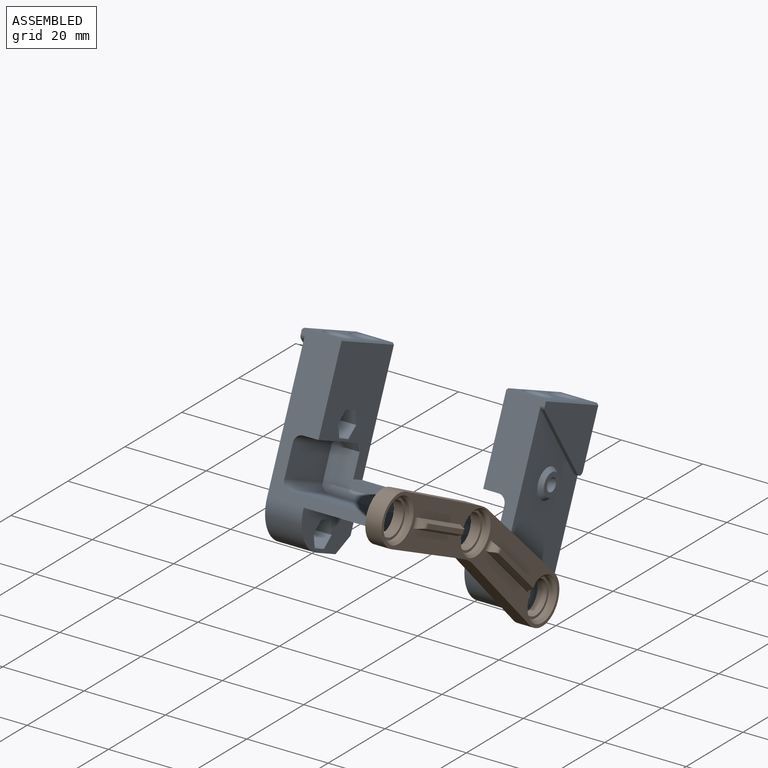
[diagram: assembled view]
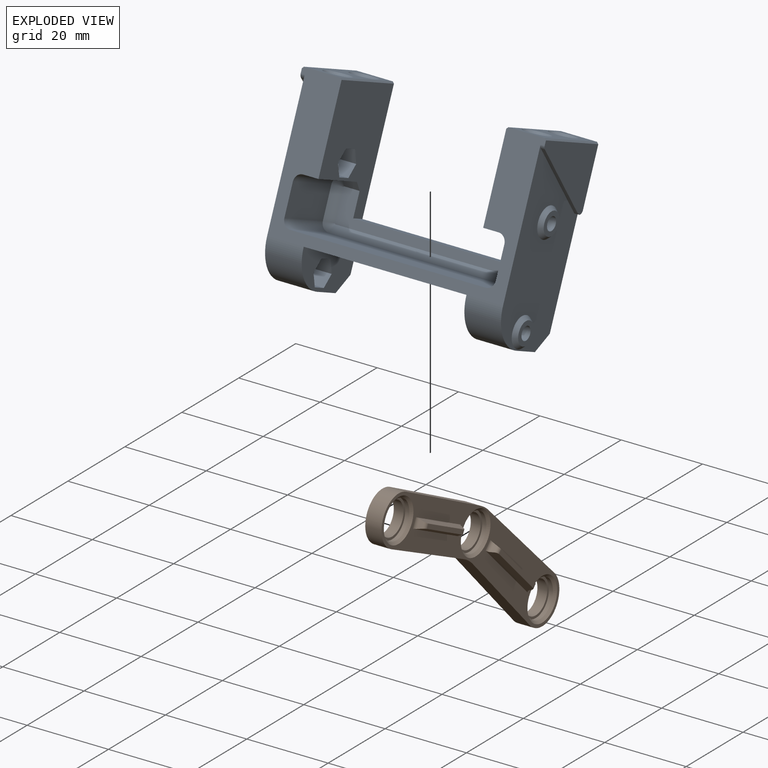
[diagram: exploded view]
GUIDED TOUR — FREECAD ASSEMBLY "gripper-parts"

This assembly has 2 components, labeled P0..P1 below (a component is one placed body or linked part; the same part can appear more than once), held together by 0 modeled joints plus 1 derived contact edge. A joint is a constraint between two components; its type names the relative motion it leaves free:
  CONTACT — a derived adjacency edge — the two components touch in the source model (clearance under 2% of the assembly's diagonal); it is measured from the geometry, not a modeled constraint.
Axis/direction vectors are unit vectors and 'through' points are millimeter coordinates, both in the assembly's world frame.

MATES
  1. CONTACT "contact_0_1": P0 <-> P1, contact direction (1.000, 0.000, 0.000) through (15.94, -6.40, -53.15) mm (derived from contact, not a modeled constraint)

ASSEMBLY ORDER
  1. P1 — the base component [order verified]
  2. P0 [order verified]
Order-tag legend:
  [order verified] — this step's position reverses a verified removal order: the component was checked to insert without passing through the ones already placed.

Of the 2 components, 2 carry a construction recipe — the FreeCAD feature program (sketches with constraints, then the solid features that consume them) that regenerates the part from scratch, quoted from this document or from the linked companion document it references; the rest are supplied as boundary geometry only. The tour below walks the components in assembly order: each is shown spotlighted twice — in the assembled view, then in the exploded view, where a leader line traces a displaced component back to its assembled socket (components that stay in place when exploded have no leader line; saturated green if recipe-attached, orange if geometry-only; every other component desaturated gray) — followed by its recipe or geometry summary and the mates that hold it.
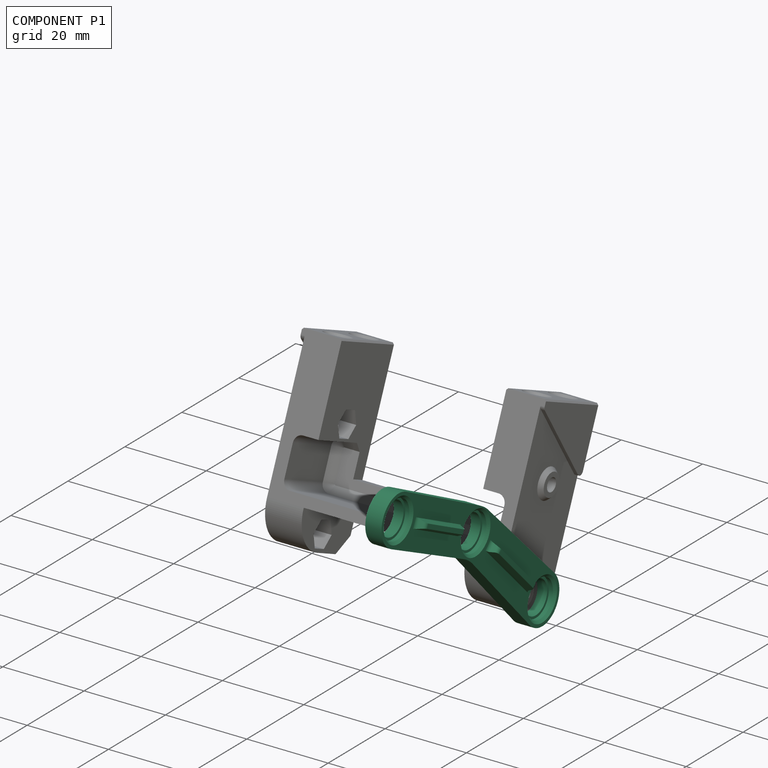
[diagram: component P1 — assembled]
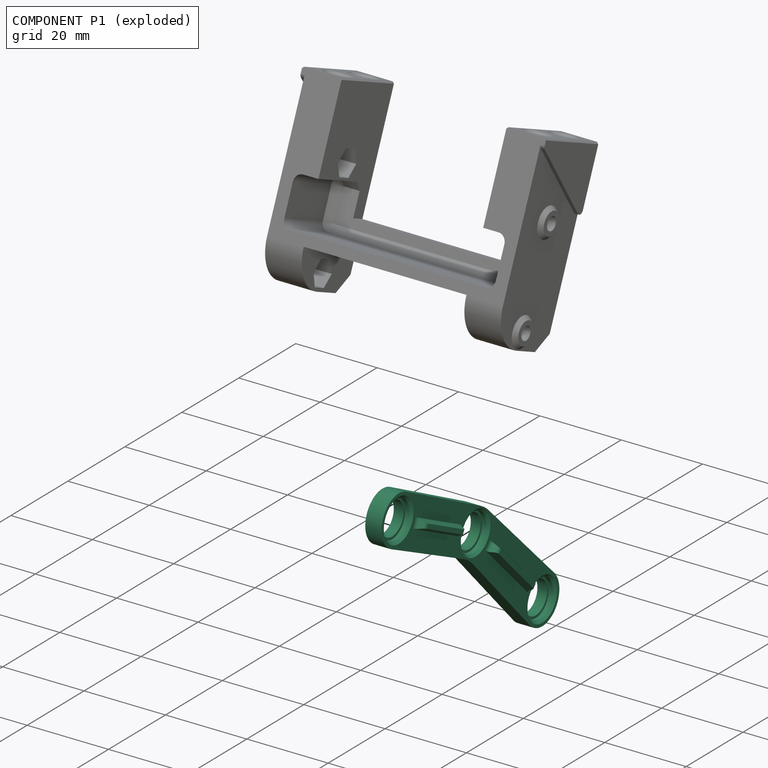
[diagram: component P1 — exploded]
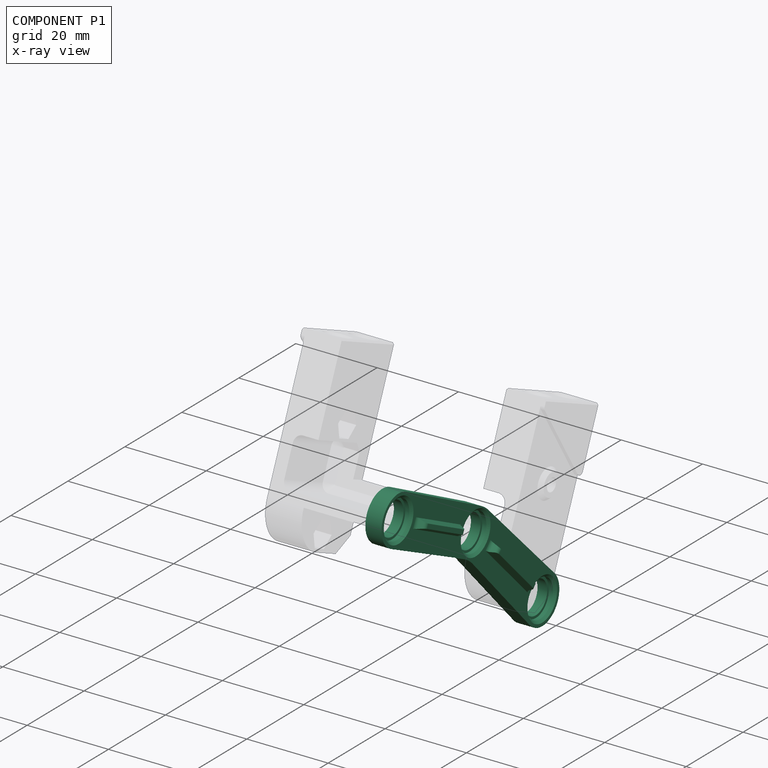
[diagram: component P1 — x-ray view]
COMPONENT P1 — recipe-attached ("Corps003", modeled in this document).
Held by: resting contact with P0 (derived edge).
Construction recipe (the document's own serialized feature program — sketch geometry with constraints, then the solid features built on it; lengths are millimeters unless a unit is written):

FEATURE [PartDesign::SubShapeBinder] Binder002
  BindCopyOnChange = 0
  BindMode = 0
  ClaimChildren = false
  Context = -> Part020 [Body053.Binder002.]
  Fuse = false
  MakeFace = true
  OffsetFill = false
  OffsetIntersection = false
  OffsetJoinType = 0
  OffsetOpenResult = false
  PartialLoad = false
  Refine = true
  Relative = true
  Support = -> [Sketch262]
  _Version = 2
FEATURE [Sketcher::SketchObject] Sketch268
  ArcFitTolerance = 1e-06
  AttachmentSupport = -> [Origin120]
  ExternalGeometry = -> [Binder002]
  ExternalTypes = [0,0]
  FullyConstrained = true
  MakeInternals = false
  MapMode = 5
  Placement = pos=(0,0,0) rot=(0.57735,0.57735,0.57735;2.0944rad)
  sketch-geometry (10):
    g0: LineSegment StartX=-59.2409 StartY=-6.04493 StartZ=0 EndX=-31.3049 EndY=-19.3357 EndZ=0
    g1: LineSegment StartX=-31.3049 StartY=-19.3357 StartZ=0 EndX=-6.47652 EndY=-42.7669 EndZ=0
    g2: LineSegment StartX=-14.8715 StartY=-51.3386 StartZ=0 EndX=-36.7511 EndY=-29.1008 EndZ=0
    g3: LineSegment StartX=-36.7511 StartY=-29.1008 StartZ=0 EndX=-64.2439 EndY=-16.951 EndZ=0
    g4: ArcOfCircle CenterX=-61.8186 CenterY=-11.463 CenterZ=0 NormalX=0 NormalY=0 NormalZ=1 AngleXU=0 Radius=6 StartAngle=1.12673 EndAngle=4.29627
    g5: ArcOfCircle CenterX=-10.5946 CenterY=-47.1305 CenterZ=0 NormalX=0 NormalY=0 NormalZ=1 AngleXU=0 Radius=6 StartAngle=3.91887 EndAngle=7.09753
    g6: Circle [constr] CenterX=-34.4956 CenterY=-23.997 CenterZ=0 NormalX=0 NormalY=0 NormalZ=1 AngleXU=0 Radius=5.58
    g7: Circle CenterX=-61.8186 CenterY=-11.463 CenterZ=0 NormalX=0 NormalY=0 NormalZ=1 AngleXU=0 Radius=4
    g8: Circle CenterX=-10.5946 CenterY=-47.1305 CenterZ=0 NormalX=0 NormalY=0 NormalZ=1 AngleXU=0 Radius=4
    g9: Circle CenterX=-34.4956 CenterY=-23.997 CenterZ=0 NormalX=0 NormalY=0 NormalZ=1 AngleXU=0 Radius=4
  constraints (22):
    c: Coincident(g4,g-3)
    c: Coincident(g5,g-4)
    c: Tangent(g4,g3) = 1.5708
    c: Tangent(g4,g0) = 1.5708
    c: Equal(g5,g4)
    c: Coincident(g2,g3)
    c: Coincident(g0,g1)
    c: Coincident(g6,g-4)
    c: Tangent(g6,g1)
    c: Tangent(g6,g3)
    c: Coincident(g7,g4)
    c: Diameter(g7) = 8
    c: Coincident(g8,g5)
    c: Equal(g8,g7)
    c: Coincident(g9,g6)
    c: Equal(g9,g7)
    c: Radius(g4) = 6
    c: Diameter(g6) = 11.16
    c: Tangent(g5,g2) = 1.5708
    c: Tangent(g5,g1) = 1.5708
    c: PointOnObject(g2,g6)
    c: Tangent(g0,g6)
FEATURE [PartDesign::Pad] Pad111
  Direction = (1,0,0)
  Length = 4
  Length2 = 10
  Profile = -> Sketch268
  ReferenceAxis = -> Sketch268 [N_Axis]
  Refine = true
  SideType = 0
  Suppressed = false
  Type = 0
  Type2 = 0
FEATURE [PartDesign::Fillet] Fillet035
  Base = -> Pad111 [Edge11]
  BaseFeature = -> Pad111
  Radius = 10
  Refine = true
  SupportTransform = false
  Suppressed = false
  UseAllEdges = false
FEATURE [Sketcher::SketchObject] Sketch280
  ArcFitTolerance = 1e-06
  AttachmentSupport = -> [Fillet035]
  ExternalGeometry = -> [Fillet035]
  ExternalTypes = [0,0,0]
  FullyConstrained = true
  MakeInternals = false
  MapMode = 5
  Placement = pos=(4,0,0) rot=(0.57735,0.57735,0.57735;2.0944rad)
  sketch-geometry (3):
    g0: Circle CenterX=-61.8186 CenterY=-11.463 CenterZ=0 NormalX=0 NormalY=0 NormalZ=1 AngleXU=0 Radius=4.6
    g1: Circle CenterX=-34.4956 CenterY=-23.997 CenterZ=0 NormalX=0 NormalY=0 NormalZ=1 AngleXU=0 Radius=4.6
    g2: Circle CenterX=-10.5946 CenterY=-47.1305 CenterZ=0 NormalX=0 NormalY=0 NormalZ=1 AngleXU=0 Radius=4.6
  constraints (6):
    c: Coincident(g0,g-3)
    c: Coincident(g1,g-4)
    c: Coincident(g2,g-5)
    c: Equal(g2,g1)
    c: Equal(g1,g0)
    c: Diameter(g0) = 9.2
FEATURE [PartDesign::Fillet] Fillet036
  Base = -> Fillet035 [Edge26]
  BaseFeature = -> Fillet035
  Radius = 10
  Refine = true
  SupportTransform = false
  Suppressed = false
  UseAllEdges = false
FEATURE [PartDesign::Pocket] Pocket054
  BaseFeature = -> Fillet036
  Direction = (-1,0,0)
  Length = 1.6
  Length2 = 5
  Profile = -> Sketch280
  ReferenceAxis = -> Sketch280 [N_Axis]
  Refine = true
  SideType = 0
  Suppressed = false
  Type = 0
  Type2 = 0
  expr: Length = 4 - 2.4
FEATURE [PartDesign::Chamfer] Chamfer039
  Angle = 45
  Base = -> Pocket054 [Edge36,Edge35,Edge34]
  BaseFeature = -> Pocket054
  ChamferType = 0
  FlipDirection = false
  Refine = true
  Size = 0.6
  Size2 = 1
  SupportTransform = false
  Suppressed = false
  UseAllEdges = false
FEATURE [Sketcher::SketchObject] Sketch281
  ArcFitTolerance = 1e-06
  AttachmentSupport = -> [Origin120]
  ExternalGeometry = -> [Chamfer039]
  ExternalTypes = [0,0,0]
  FullyConstrained = true
  MakeInternals = false
  MapMode = 5
  Placement = pos=(0,0,0) rot=(0.57735,0.57735,0.57735;2.0944rad)
  sketch-geometry (12):
    g0: LineSegment [constr] StartX=-61.8186 StartY=-11.463 StartZ=0 EndX=-34.4956 EndY=-23.997 EndZ=0
    g1: LineSegment [constr] StartX=-34.4956 StartY=-23.997 StartZ=0 EndX=-10.5946 EndY=-47.1305 EndZ=0
    g2: LineSegment StartX=-57.8619 StartY=-16.0286 StartZ=0 EndX=-40.5371 EndY=-23.9761 EndZ=0
    g3: LineSegment StartX=-40.5371 StartY=-23.9761 StartZ=0 EndX=-38.4523 EndY=-19.4314 EndZ=0
    g4: LineSegment StartX=-38.4523 StartY=-19.4314 StartZ=0 EndX=-55.7771 EndY=-11.4839 EndZ=0
    g5: LineSegment StartX=-55.7771 StartY=-11.4839 StartZ=0 EndX=-57.8619 EndY=-16.0286 EndZ=0
    g6: GeomPoint [constr] X=-48.1571 Y=-17.73 Z=0
    g7: LineSegment StartX=-28.8049 StartY=-26.0257 StartZ=0 EndX=-32.2823 EndY=-29.6185 EndZ=0
    g8: LineSegment StartX=-32.2823 StartY=-29.6185 StartZ=0 EndX=-16.2853 EndY=-45.1018 EndZ=0
    g9: LineSegment StartX=-16.2853 StartY=-45.1018 StartZ=0 EndX=-12.8079 EndY=-41.509 EndZ=0
    g10: LineSegment StartX=-12.8079 StartY=-41.509 StartZ=0 EndX=-28.8049 EndY=-26.0257 EndZ=0
    g11: GeomPoint [constr] X=-22.5451 Y=-35.5637 Z=0
  constraints (28):
    c: Coincident(g0,g-3)
    c: Coincident(g0,g-4)
    c: Coincident(g1,g0)
    c: Coincident(g1,g-5)
    c: Coincident(g2,g3)
    c: Coincident(g3,g4)
    c: Coincident(g4,g5)
    c: Coincident(g5,g2)
    c: Parallel(g2,g4)
    c: Parallel(g3,g5)
    c: Symmetric(g4,g2,g6)
    c: Symmetric(g0,g0,g6)
    c: Coincident(g7,g8)
    c: Coincident(g8,g9)
    c: Coincident(g9,g10)
    c: Coincident(g10,g7)
    c: Parallel(g7,g9)
    c: Parallel(g8,g10)
    c: Symmetric(g9,g7,g11)
    c: Symmetric(g1,g1,g11)
    c: Perpendicular(g3,g2)
    c: Perpendicular(g7,g8)
    c: Perpendicular(g1,g9)
    c: Perpendicular(g0,g3)
    c: Equal(g7,g3)
    c: Distance(g0,g3) = 5.5
    c: Distance(g0,g7) = 5.5
    c: Distance(g3,g3) = 5
FEATURE [PartDesign::Pad] Pad116
  BaseFeature = -> Chamfer039
  Direction = (1,0,0)
  Length = 6
  Length2 = 10
  Profile = -> Sketch281
  ReferenceAxis = -> Sketch281 [N_Axis]
  Refine = true
  SideType = 0
  Suppressed = false
  TaperAngle = -18
  Type = 0
  Type2 = 0
FEATURE [PartDesign::Fillet] Fillet037
  Base = -> Pad116 [Edge17,Edge53,Edge15,Edge49,Edge11,Edge41,Edge13,Edge45]
  BaseFeature = -> Pad116
  Radius = 1
  Refine = true
  SupportTransform = false
  Suppressed = false
  UseAllEdges = false
FEATURE [PartDesign::Body] Body056  label="Corps003"
  AllowCompound = false
  Group = -> [Binder002,Sketch268,Pad111,Fillet035,Sketch280,Fillet036,Pocket054,Chamfer039,Sketch281,Pad116,Fillet037]
  Origin = -> Origin120
  Placement = pos=(20,0,0) rot=(0,0,1;0rad)
  Tip = -> Fillet037
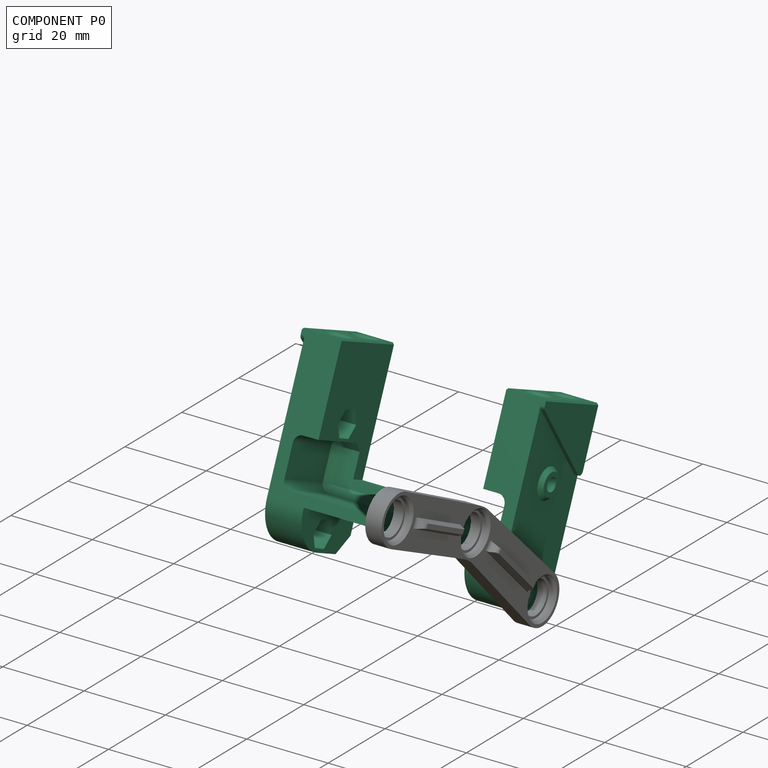
[diagram: component P0 — assembled]
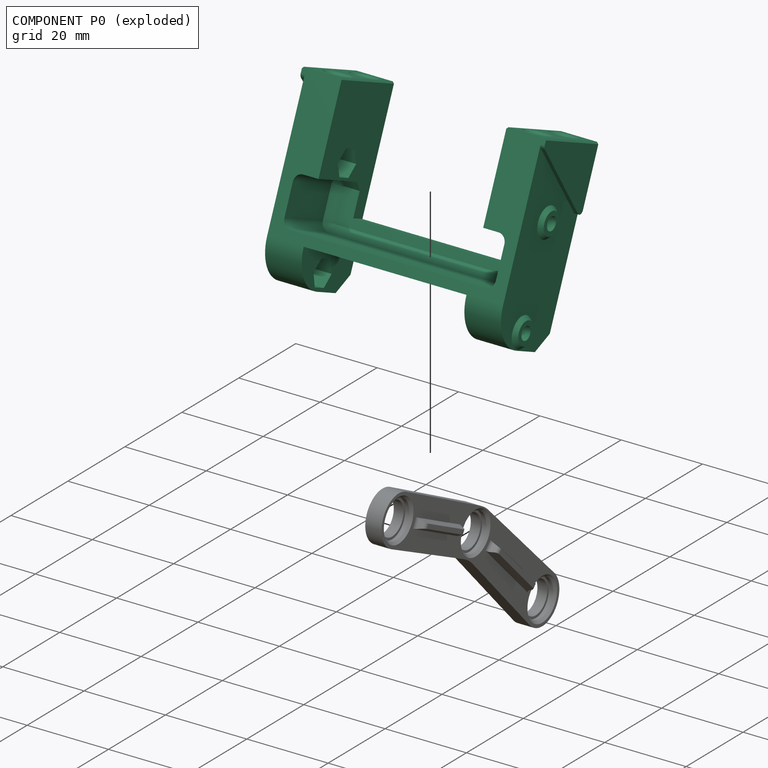
[diagram: component P0 — exploded]
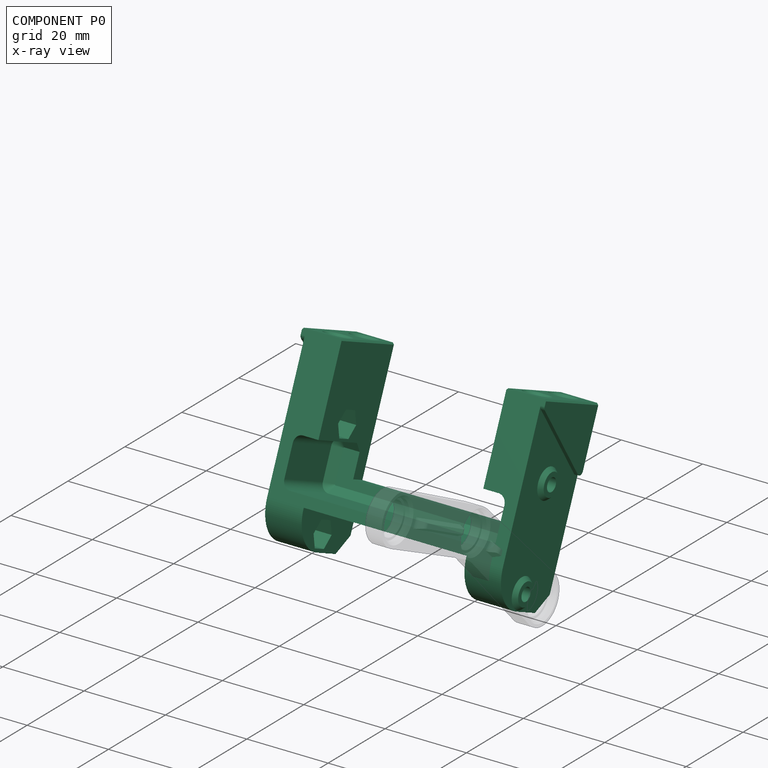
[diagram: component P0 — x-ray view]
COMPONENT P0 — recipe-attached ("Corps001", modeled in this document).
Held by: resting contact with P1 (derived edge).
Construction recipe (the document's own serialized feature program — sketch geometry with constraints, then the solid features built on it; lengths are millimeters unless a unit is written):

FEATURE [Sketcher::SketchObject] Sketch263
  ArcFitTolerance = 1e-06
  AttachmentSupport = -> [Origin116]
  ExternalTypes = [0]
  FullyConstrained = true
  MakeInternals = false
  MapMode = 5
  sketch-geometry (4):
    g0: LineSegment StartX=10 StartY=0 StartZ=0 EndX=10 EndY=-20 EndZ=0
    g1: LineSegment StartX=10 StartY=-20 StartZ=0 EndX=20 EndY=-20 EndZ=0
    g2: LineSegment StartX=20 StartY=-20 StartZ=0 EndX=20 EndY=0 EndZ=0
    g3: LineSegment StartX=20 StartY=0 StartZ=0 EndX=10 EndY=0 EndZ=0
  constraints (12):
    c: Coincident(g0,g1)
    c: Coincident(g1,g2)
    c: Coincident(g2,g3)
    c: Coincident(g3,g0)
    c: Vertical(g0)
    c: Vertical(g2)
    c: Horizontal(g1)
    c: Horizontal(g3)
    c: PointOnObject(g0,g-1)
    c: DistanceX(g3,g3) = 10
    c: DistanceY(g0,g0) = 20
    c: DistanceX(g-1,g0) = 10
FEATURE [PartDesign::Pad] Pad109
  Direction = (0,0,1)
  Length = 44
  Length2 = 10
  Profile = -> Sketch263
  ReferenceAxis = -> Sketch263 [N_Axis]
  Refine = true
  Reversed = true
  SideType = 0
  Suppressed = false
  Type = 0
  Type2 = 0
FEATURE [PartDesign::SubShapeBinder] Binder
  BindCopyOnChange = 0
  BindMode = 0
  ClaimChildren = false
  Context = -> Part020 [Body054.Binder.]
  Fuse = false
  MakeFace = true
  OffsetFill = false
  OffsetIntersection = false
  OffsetJoinType = 0
  OffsetOpenResult = false
  PartialLoad = false
  Refine = true
  Relative = true
  Support = -> [Body053[Sketch262.]]
  _Version = 2
FEATURE [Sketcher::SketchObject] Sketch264
  ArcFitTolerance = 1e-06
  AttachmentSupport = -> [Pad109]
  ExternalTypes = [0]
  FullyConstrained = true
  MakeInternals = false
  MapMode = 5
  sketch-geometry (2):
    g0: Circle CenterX=14.5 CenterY=-5 CenterZ=0 NormalX=0 NormalY=0 NormalZ=1 AngleXU=0 Radius=2.2
    g1: Circle CenterX=14.5 CenterY=-15 CenterZ=0 NormalX=0 NormalY=0 NormalZ=1 AngleXU=0 Radius=2.2
  constraints (6):
    c: Vertical(g1,g0)
    c: Equal(g0,g1)
    c: Diameter(g1) = 4.4
    c: DistanceY(g1,g0) = 10
    c: DistanceX(g-1,g0) = 14.5
    c: DistanceY(g0,g-1) = 5
FEATURE [PartDesign::Pocket] Pocket046
  BaseFeature = -> Pad109
  Direction = (0,0,-1)
  Length = 10
  Length2 = 5
  Profile = -> Sketch264
  ReferenceAxis = -> Sketch264 [N_Axis]
  Refine = true
  SideType = 0
  Suppressed = false
  Type = 0
  Type2 = 0
FEATURE [Sketcher::SketchObject] Sketch265
  ArcFitTolerance = 1e-06
  AttachmentSupport = -> [Pocket046]
  ExternalGeometry = -> [Binder]
  ExternalTypes = [0]
  FullyConstrained = true
  MakeInternals = false
  MapMode = 5
  Placement = pos=(10,0,0) rot=(0.57735,-0.57735,-0.57735;2.0944rad)
  sketch-geometry (2):
    g0: Circle CenterX=10.5946 CenterY=-17.3494 CenterZ=0 NormalX=0 NormalY=0 NormalZ=1 AngleXU=0 Radius=1.6
    g1: Circle CenterX=10.5946 CenterY=-40.1305 CenterZ=0 NormalX=0 NormalY=0 NormalZ=1 AngleXU=0 Radius=1.6
  constraints (4):
    c: Coincident(g0,g-3)
    c: Coincident(g1,g-3)
    c: Diameter(g0) = 3.2
    c: Equal(g0,g1)
FEATURE [PartDesign::Pocket] Pocket047
  BaseFeature = -> Pocket046
  Direction = (1,0,0)
  Length = 5
  Length2 = 5
  Profile = -> Sketch265
  ReferenceAxis = -> Sketch265 [N_Axis]
  Refine = true
  SideType = 0
  Suppressed = false
  Type = 1
  Type2 = 0
FEATURE [PartDesign::Fillet] Fillet030
  Base = -> Pocket047 [Edge14]
  BaseFeature = -> Pocket047
  Radius = 9
  Refine = true
  SupportTransform = false
  Suppressed = false
  UseAllEdges = false
FEATURE [Sketcher::SketchObject] Sketch275
  ArcFitTolerance = 1e-06
  AttachmentSupport = -> [Fillet030]
  ExternalGeometry = -> [Fillet030]
  ExternalTypes = [0,0]
  FullyConstrained = true
  MakeInternals = false
  MapMode = 5
  Placement = pos=(10,0,0) rot=(0.57735,-0.57735,-0.57735;2.0944rad)
  sketch-geometry (7):
    g0: LineSegment StartX=8.86255 StartY=-20.3494 StartZ=0 EndX=12.3267 EndY=-20.3494 EndZ=0
    g1: LineSegment StartX=12.3267 StartY=-20.3494 StartZ=0 EndX=14.0587 EndY=-17.3494 EndZ=0
    g2: LineSegment StartX=14.0587 StartY=-17.3494 StartZ=0 EndX=12.3267 EndY=-14.3494 EndZ=0
    g3: LineSegment StartX=12.3267 StartY=-14.3494 StartZ=0 EndX=8.86255 EndY=-14.3494 EndZ=0
    g4: LineSegment StartX=8.86255 StartY=-14.3494 StartZ=0 EndX=7.1305 EndY=-17.3494 EndZ=0
    g5: LineSegment StartX=7.1305 StartY=-17.3494 StartZ=0 EndX=8.86255 EndY=-20.3494 EndZ=0
    g6: Circle [constr] CenterX=10.5946 CenterY=-17.3494 CenterZ=0 NormalX=0 NormalY=0 NormalZ=1 AngleXU=0 Radius=3.4641
  constraints (16):
    c: Coincident(g0,g1)
    c: Coincident(g1,g2)
    c: Coincident(g2,g3)
    c: Coincident(g3,g4)
    c: Coincident(g4,g5)
    c: Coincident(g5,g0)
    c: Equal(g0, g1-g5) x5
    c: PointOnObject(g0,g6)
    c: PointOnObject(g1,g6)
    c: PointOnObject(g2,g6)
    c: PointOnObject(g3,g6)
    c: PointOnObject(g4,g6)
    c: PointOnObject(g5,g6)
    c: Coincident(g6,g-3)
    c: Distance(g1,g4) = 6
    c: Parallel(g3,g-1)
FEATURE [PartDesign::Pocket] Pocket049
  BaseFeature = -> Fillet030
  Direction = (1,0,0)
  Length = 6
  Length2 = 5
  Profile = -> Sketch275
  ReferenceAxis = -> Sketch275 [N_Axis]
  Refine = true
  SideType = 0
  Suppressed = false
  Type = 0
  Type2 = 0
FEATURE [Sketcher::SketchObject] Sketch290
  ArcFitTolerance = 1e-06
  AttachmentOffset = pos=(0,0,-10) rot=(0,0,1;0rad)
  AttachmentSupport = -> [Pocket049]
  ExternalTypes = [0,0]
  FullyConstrained = true
  MakeInternals = false
  MapMode = 5
  Placement = pos=(0,-10,2.2e-15) rot=(0,0.707107,0.707107;3.14159rad)
  sketch-geometry (5):
    g0: LineSegment StartX=-10 StartY=-21 StartZ=0 EndX=-16 EndY=-21 EndZ=0
    g1: LineSegment StartX=-16 StartY=-21 StartZ=0 EndX=-16 EndY=-32.5 EndZ=0
    g2: LineSegment StartX=-16 StartY=-32.5 StartZ=0 EndX=-10 EndY=-32.5 EndZ=0
    g3: LineSegment StartX=-10 StartY=-32.5 StartZ=0 EndX=-10 EndY=-21 EndZ=0
    g4: GeomPoint X=-10 Y=-28.5 Z=0
  constraints (14):
    c: Coincident(g0,g1)
    c: Coincident(g1,g2)
    c: Coincident(g2,g3)
    c: Coincident(g3,g0)
    c: Horizontal(g0)
    c: Horizontal(g2)
    c: Vertical(g1)
    c: Vertical(g3)
    c: DistanceY(g0,g-3) = 21
    c: PointOnObject(g2,g-3)
    c: Distance(g-4,g1) = 4
    c: PointOnObject(g4,g3)
    c: DistanceY(g4,g-3) = 28.5
    c: Distance(g2,g4) = 4
FEATURE [PartDesign::Pocket] Pocket058
  BaseFeature = -> Pocket049
  Direction = (0,-1,2e-16)
  Length = 13
  Length2 = 5
  Profile = -> Sketch290
  ReferenceAxis = -> Sketch290 [N_Axis]
  Refine = true
  SideType = 2
  Suppressed = false
  Type = 0
  Type2 = 0
FEATURE [Sketcher::SketchObject] Sketch291
  ArcFitTolerance = 1e-06
  AttachmentSupport = -> [Pocket058]
  ExternalGeometry = -> [Pocket058]
  ExternalTypes = [0,0,0,0]
  FullyConstrained = true
  MakeInternals = false
  MapMode = 5
  Placement = pos=(10,0,0) rot=(0.57735,-0.57735,-0.57735;2.0944rad)
  sketch-geometry (6):
    g0: LineSegment StartX=0 StartY=-28.5 StartZ=0 EndX=3.5 EndY=-28.5 EndZ=0
    g1: LineSegment StartX=3.5 StartY=-28.5 StartZ=0 EndX=3.5 EndY=-32.5 EndZ=0
    g2: LineSegment StartX=3.5 StartY=-32.5 StartZ=0 EndX=20 EndY=-32.5 EndZ=0
    g3: LineSegment StartX=20 StartY=-32.5 StartZ=0 EndX=20 EndY=-35 EndZ=0
    g4: LineSegment StartX=20 StartY=-35 StartZ=0 EndX=0 EndY=-35 EndZ=0
    g5: LineSegment StartX=0 StartY=-35 StartZ=0 EndX=0 EndY=-28.5 EndZ=0
  constraints (16):
    c: PointOnObject(g0,g-3)
    c: Coincident(g0,g1)
    c: Coincident(g1,g-4)
    c: Coincident(g1,g2)
    c: PointOnObject(g2,g-5)
    c: Horizontal(g2)
    c: Coincident(g2,g3)
    c: Coincident(g3,g-5)
    c: Horizontal(g0)
    c: Coincident(g3,g4)
    c: PointOnObject(g4,g-2)
    c: Horizontal(g4)
    c: Coincident(g4,g5)
    c: Coincident(g5,g0)
    c: Vertical(g5)
    c: DistanceY(g0,g-1) = 28.5
FEATURE [PartDesign::Pad] Pad122
  BaseFeature = -> Pocket058
  Direction = (-1,0,0)
  Length = 20
  Length2 = 10
  Profile = -> Sketch291
  ReferenceAxis = -> Sketch291 [N_Axis]
  Refine = true
  SideType = 0
  Suppressed = false
  Type = 0
  Type2 = 0
FEATURE [PartDesign::Chamfer] Chamfer043
  Angle = 45
  Base = -> Pad122 [Edge26]
  BaseFeature = -> Pad122
  ChamferType = 0
  FlipDirection = false
  Refine = true
  Size = 4
  Size2 = 1
  SupportTransform = false
  Suppressed = false
  UseAllEdges = false
FEATURE [PartDesign::Fillet] Fillet044
  Base = -> Chamfer043 [Edge17]
  BaseFeature = -> Chamfer043
  Radius = 2
  Refine = true
  SupportTransform = false
  Suppressed = false
  UseAllEdges = false
FEATURE [PartDesign::Pocket] Pocket059
  BaseFeature = -> Fillet044
  Direction = (0,-1,0)
  Length = 5
  Length2 = 5
  Profile = -> Fillet044 [Face18]
  Refine = true
  SideType = 0
  Suppressed = false
  Type = 0
  Type2 = 0
FEATURE [PartDesign::Fillet] Fillet045
  Base = -> Pocket059 [Edge74,Edge73]
  BaseFeature = -> Pocket059
  Radius = 2
  Refine = true
  SupportTransform = false
  Suppressed = false
  UseAllEdges = false
FEATURE [PartDesign::Chamfer] Chamfer044
  Angle = 45
  Base = -> Fillet045 [Edge50,Edge51]
  BaseFeature = -> Fillet045
  ChamferType = 0
  FlipDirection = false
  Refine = true
  Size = 1
  Size2 = 1
  SupportTransform = false
  Suppressed = false
  UseAllEdges = false
FEATURE [Sketcher::SketchObject] Sketch292
  ArcFitTolerance = 1e-06
  AttachmentSupport = -> [Chamfer044]
  ExternalGeometry = -> [Chamfer044]
  ExternalTypes = [0,0,0]
  FullyConstrained = true
  MakeInternals = false
  MapMode = 5
  Placement = pos=(20,0,0) rot=(0.57735,0.57735,0.57735;2.0944rad)
  sketch-geometry (4):
    g0: LineSegment StartX=-20 StartY=-2 StartZ=0 EndX=0 EndY=-16.0042 EndZ=0
    g1: LineSegment StartX=-20 StartY=-2 StartZ=0 EndX=-20 EndY=-44 EndZ=0
    g2: LineSegment StartX=-20 StartY=-44 StartZ=0 EndX=0 EndY=-44 EndZ=0
    g3: LineSegment StartX=0 StartY=-44 StartZ=0 EndX=0 EndY=-16.0042 EndZ=0
  constraints (12):
    c: PointOnObject(g0,g-3)
    c: PointOnObject(g0,g-4)
    c: Coincident(g0,g1)
    c: Vertical(g1)
    c: Coincident(g1,g2)
    c: PointOnObject(g2,g-2)
    c: Horizontal(g2)
    c: Coincident(g2,g3)
    c: Coincident(g3,g0)
    c: PointOnObject(g-5,g2)
    c: Angle(g-4,g0) = 0.959931
    c: Distance(g0,g-3) = 2
FEATURE [PartDesign::Pocket] Pocket060
  BaseFeature = -> Chamfer044
  Direction = (-1,0,0)
  Length = 1
  Length2 = 5
  Profile = -> Sketch292
  ReferenceAxis = -> Sketch292 [N_Axis]
  Refine = true
  SideType = 0
  Suppressed = false
  Type = 0
  Type2 = 0
FEATURE [Sketcher::SketchObject] Sketch293
  ArcFitTolerance = 1e-06
  AttachmentSupport = -> [Pocket060]
  ExternalGeometry = -> [Pocket060]
  ExternalTypes = [0,0]
  FullyConstrained = true
  MakeInternals = false
  MapMode = 5
  Placement = pos=(19,0,0) rot=(0.57735,0.57735,0.57735;2.0944rad)
  sketch-geometry (2):
    g0: Circle CenterX=-10.5946 CenterY=-17.3494 CenterZ=0 NormalX=0 NormalY=0 NormalZ=1 AngleXU=0 Radius=2.75
    g1: Circle CenterX=-10.5946 CenterY=-40.1305 CenterZ=0 NormalX=0 NormalY=0 NormalZ=1 AngleXU=0 Radius=2.75
  constraints (4):
    c: Coincident(g0,g-3)
    c: Coincident(g1,g-4)
    c: Equal(g1,g0)
    c: Diameter(g0) = 5.5
FEATURE [PartDesign::Pad] Pad123
  BaseFeature = -> Pocket060
  Direction = (1,0,0)
  Length = 1
  Length2 = 10
  Profile = -> Sketch293
  ReferenceAxis = -> Sketch293 [N_Axis]
  Refine = true
  SideType = 0
  Suppressed = false
  Type = 0
  Type2 = 0
FEATURE [PartDesign::Draft] Draft006
  Angle = 40
  Base = -> Pad123 [Face34]
  BaseFeature = -> Pad123
  NeutralPlane = -> Pad123 [Face37]
  Refine = true
  SupportTransform = false
  Suppressed = false
FEATURE [PartDesign::Draft] Draft007
  Angle = 40
  Base = -> Draft006 [Face35]
  BaseFeature = -> Draft006
  NeutralPlane = -> Draft006 [Face38]
  Refine = true
  SupportTransform = false
  Suppressed = false
FEATURE [PartDesign::Fillet] Fillet046
  Base = -> Draft007 [Edge24,Edge33]
  BaseFeature = -> Draft007
  Radius = 1
  Refine = true
  SupportTransform = false
  Suppressed = false
  UseAllEdges = false
FEATURE [Sketcher::SketchObject] Sketch294
  ArcFitTolerance = 1e-06
  AttachmentSupport = -> [Fillet046]
  ExternalGeometry = -> [Fillet046]
  ExternalTypes = [0]
  FullyConstrained = true
  MakeInternals = false
  MapMode = 5
  Placement = pos=(10,0,0) rot=(0.57735,-0.57735,-0.57735;2.0944rad)
  sketch-geometry (7):
    g0: LineSegment StartX=14.0587 StartY=-40.1305 StartZ=0 EndX=12.3267 EndY=-37.1305 EndZ=0
    g1: LineSegment StartX=12.3267 StartY=-37.1305 StartZ=0 EndX=8.86255 EndY=-37.1305 EndZ=0
    g2: LineSegment StartX=8.86255 StartY=-37.1305 StartZ=0 EndX=7.1305 EndY=-40.1305 EndZ=0
    g3: LineSegment StartX=7.1305 StartY=-40.1305 StartZ=0 EndX=8.86255 EndY=-43.1305 EndZ=0
    g4: LineSegment StartX=8.86255 StartY=-43.1305 StartZ=0 EndX=12.3267 EndY=-43.1305 EndZ=0
    g5: LineSegment StartX=12.3267 StartY=-43.1305 StartZ=0 EndX=14.0587 EndY=-40.1305 EndZ=0
    g6: Circle [constr] CenterX=10.5946 CenterY=-40.1305 CenterZ=0 NormalX=0 NormalY=0 NormalZ=1 AngleXU=0 Radius=3.4641
  constraints (16):
    c: Coincident(g0,g1)
    c: Coincident(g1,g2)
    c: Coincident(g2,g3)
    c: Coincident(g3,g4)
    c: Coincident(g4,g5)
    c: Coincident(g5,g0)
    c: Equal(g0, g1-g5) x5
    c: PointOnObject(g0,g6)
    c: PointOnObject(g1,g6)
    c: PointOnObject(g2,g6)
    c: PointOnObject(g3,g6)
    c: PointOnObject(g4,g6)
    c: PointOnObject(g5,g6)
    c: Coincident(g6,g-3)
    c: Horizontal(g1)
    c: DistanceY(g4,g0) = 6
FEATURE [PartDesign::Pocket] Pocket061
  BaseFeature = -> Fillet046
  Direction = (1,0,0)
  Length = 6
  Length2 = 5
  Profile = -> Sketch294
  ReferenceAxis = -> Sketch294 [N_Axis]
  Refine = true
  SideType = 0
  Suppressed = false
  Type = 0
  Type2 = 0
FEATURE [PartDesign::Chamfer] Chamfer045
  Angle = 45
  Base = -> Pocket061 [Edge81]
  BaseFeature = -> Pocket061
  ChamferType = 0
  FlipDirection = false
  Refine = true
  Size = 1.8
  Size2 = 1
  SupportTransform = false
  Suppressed = false
  UseAllEdges = false
FEATURE [PartDesign::Mirrored] Mirrored004
  BaseFeature = -> Chamfer045
  MirrorPlane = -> Chamfer045 [Face23]
  Originals = -> [Chamfer045]
  Refine = true
  Suppressed = false
  TransformMode = 1
FEATURE [PartDesign::Pocket] Pocket062
  BaseFeature = -> Mirrored004
  Direction = (1,0,0)
  Length = 0.25
  Length2 = 5
  Profile = -> Mirrored004 [Face1]
  Refine = true
  SideType = 0
  Suppressed = false
  Type = 0
  Type2 = 0
FEATURE [PartDesign::Pocket] Pocket063
  BaseFeature = -> Pocket062
  Direction = (-1,0,0)
  Length = 0.25
  Length2 = 5
  Profile = -> Pocket062 [Face2]
  Refine = true
  SideType = 0
  Suppressed = false
  Type = 0
  Type2 = 0
FEATURE [PartDesign::Chamfer] Chamfer046
  Angle = 45
  Base = -> Pocket063 [Edge23,Edge19,Edge49,Edge41]
  BaseFeature = -> Pocket063
  ChamferType = 0
  FlipDirection = false
  Refine = true
  Size = 0.4
  Size2 = 1
  SupportTransform = false
  Suppressed = false
  UseAllEdges = false
FEATURE [PartDesign::Body] Body054  label="SupportServoGripper"
  AllowCompound = false
  Group = -> [Sketch263,Pad109,Binder,Sketch264,Pocket046,Sketch265,Pocket047,Fillet030,Sketch275,Pocket049,Sketch290,Pocket058,Sketch291,Pad122,Chamfer043,Fillet044,Pocket059,Fillet045,Chamfer044,Sketch292,Pocket060,Sketch293,Pad123,Draft006,Draft007,Fillet046,Sketch294,Pocket061,Chamfer045,Mirrored004,Pocket062,Pocket063,Chamfer046]
  Origin = -> Origin116
  Placement = pos=(0,0,-7) rot=(0,0,1;0rad)
  Tip = -> Chamfer046
PROVENANCE & LICENSES
Assembly and component geometry: a FreeCAD (.FCStd) document from a public repository crawl; components, placements and joints were extracted with FreeCAD and each solid tessellated.
Construction recipes: the document's own serialized feature recipes (and, for linked parts, the recipes of companion documents from the same project).
License: as declared in the source repository (recorded in the dataset sidecar).
Joints: native FreeCAD joints and A2plus constraints are mapped to standard mate types; edges marked 'derived from contact' connect touching components and are measured from the geometry, not modeled.
Verification: 2 of this assembly's 2 components carry a construction recipe (2 from this document itself); the rest are geometry-only. Every component's tessellation passed the extraction mesh gates (mesh-volume checksum against the B-rep where available, bounding-box inflation <= 2%).
Renders: orthographic iso camera (az 35 / el 25); the floor grid conveys scale (grid pitch printed in each image; no ruler). In the exploded view each component is displaced by its stored offset vector: the offsets alone carry the explosion direction (mate normal/axis signs are not orientation cues and do not encode it), and separation distances are assigned per mate-chain, not proportionally to assembly-order depth.
